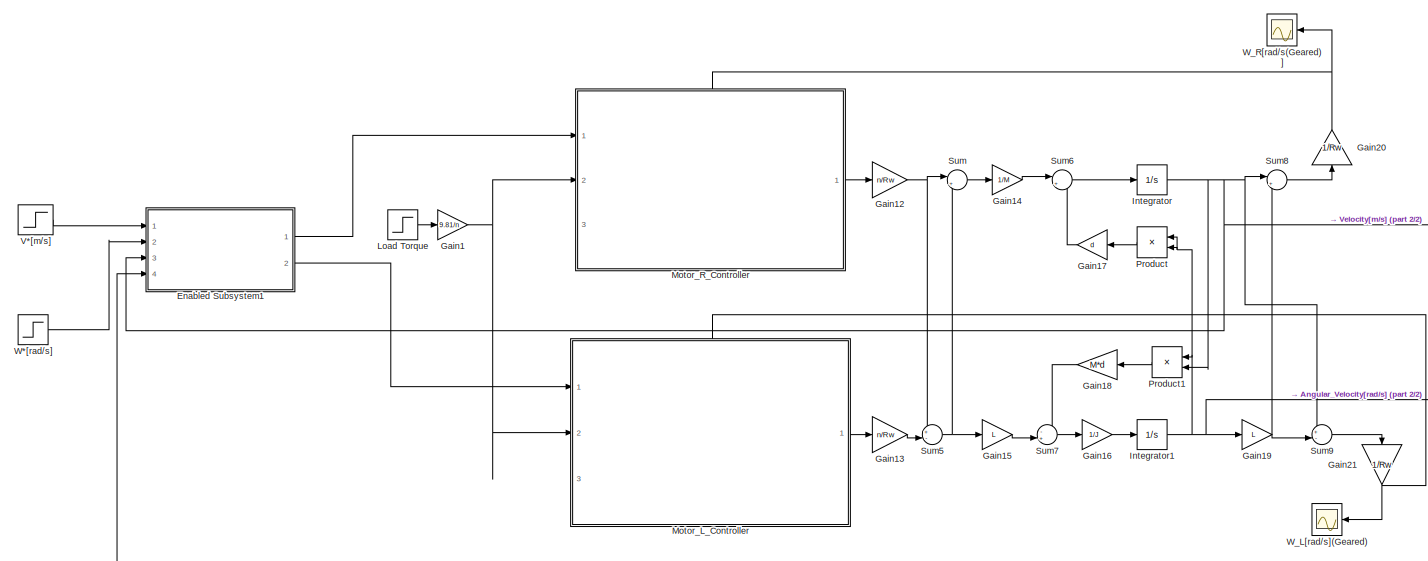
[diagram: root canvas - part 1/2, most of the canvas]
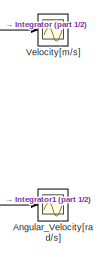
[diagram: root canvas - part 2/2, middle right region]
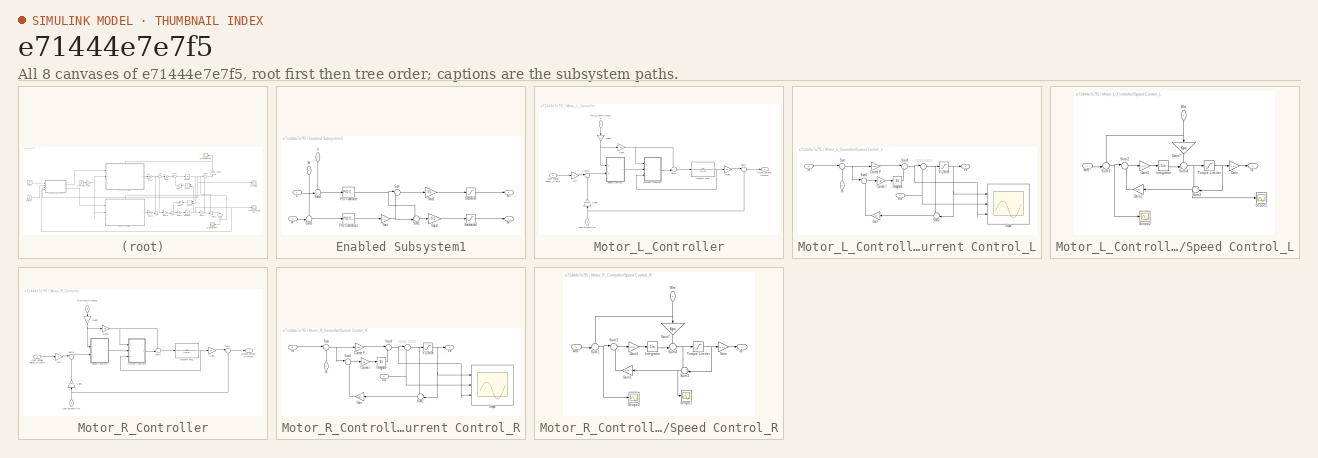
[diagram: thumbnail index - all 8 canvases of the model, root first then tree order]
MODEL slx_e71444e7e7f5
KIND model
CONFIG AbsTol = auto
CONFIG EnableMultiTasking = off
CONFIG FixedStep = auto
CONFIG MaxStep = auto
CONFIG MinStep = auto
CONFIG RelTol = 1e-3
CONFIG SampleTimeConstraint = Unconstrained
CONFIG Solver = VariableStepAuto
CONFIG SolverName = VariableStepAuto
CONFIG StartTime = 0.0
CONFIG StopTime = 2
BLOCK [Scope] Angular_Velocity[rad//s]
  Floating = off
  NumInputPorts = 1
  Ports = [1]
  ScopeSpecificationString = Simulink.scopes.TimeScopeBlockCfg('CurrentConfiguration', extmgr.ConfigurationSet(extmgr.Configuration('Core','General UI',true),extmgr.Configuration('Core','Source UI',true),extmgr.Configuration('Sources','WiredSimulink',true,'DataLoggingVariableName','ScopeData2'),extmgr.Configuration('Visuals','Time Domain',true,'SerializedDisplays',{struct('MinYLimReal','-0.01442','MaxYLimReal','0.01989','YLab...<+1471ch>
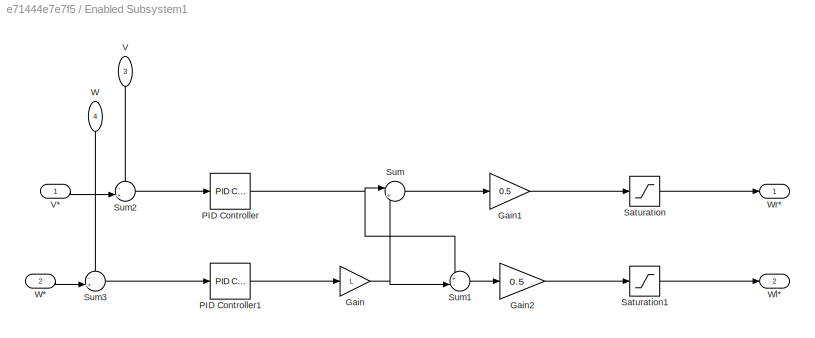
BLOCK [SubSystem] Enabled Subsystem1
  Ports = [4, 2]
  RequestExecContextInheritance = off
  TreatAsAtomicUnit = on
BLOCK [Gain] Enabled Subsystem1/Gain
  Gain = L
BLOCK [Gain] Enabled Subsystem1/Gain1
  Gain = 0.5
BLOCK [Gain] Enabled Subsystem1/Gain2
  Gain = 0.5
BLOCK [Reference] Enabled Subsystem1/PID Controller  REF=simulink/Continuous/PID Controller
  Ports = [1, 1]
  SourceBlock = simulink/Continuous/PID Controller
  SourceProductBaseCode = SL
  SourceType = PID 1dof
BLOCK [Reference] Enabled Subsystem1/PID Controller1  REF=simulink/Continuous/PID Controller
  Ports = [1, 1]
  SourceBlock = simulink/Continuous/PID Controller
  SourceProductBaseCode = SL
  SourceType = PID 1dof
BLOCK [Saturate] Enabled Subsystem1/Saturation
  LowerLimit = -1.6
  UpperLimit = 1.6
BLOCK [Saturate] Enabled Subsystem1/Saturation1
  LowerLimit = -1.6
  UpperLimit = 1.6
BLOCK [Sum] Enabled Subsystem1/Sum
  Inputs = |++
  Ports = [2, 1]
BLOCK [Sum] Enabled Subsystem1/Sum1
  Inputs = +-|
  Ports = [2, 1]
BLOCK [Sum] Enabled Subsystem1/Sum2
  Inputs = -+|
  Ports = [2, 1]
BLOCK [Sum] Enabled Subsystem1/Sum3
  Inputs = -+|
  Ports = [2, 1]
BLOCK [Inport] Enabled Subsystem1/V
  NameLocation = left
  Port = 3
BLOCK [Inport] Enabled Subsystem1/V*
BLOCK [Inport] Enabled Subsystem1/W
  NameLocation = left
  Port = 4
BLOCK [Inport] Enabled Subsystem1/W*
  Port = 2
BLOCK [Outport] Enabled Subsystem1/Wl*
  Port = 2
BLOCK [Outport] Enabled Subsystem1/Wr*
BLOCK [Gain] Gain1
  Gain = 9.81/n
BLOCK [Gain] Gain12
  Gain = n/Rw
BLOCK [Gain] Gain13
  Gain = n/Rw
BLOCK [Gain] Gain14
  Gain = 1/M
BLOCK [Gain] Gain15
  Gain = L
BLOCK [Gain] Gain16
  Gain = 1/J
BLOCK [Gain] Gain17
  Gain = d
  NameLocation = top
BLOCK [Gain] Gain18
  Gain = M*d
  NameLocation = top
BLOCK [Gain] Gain19
  Gain = L
BLOCK [Gain] Gain20
  Gain = 1/Rw
  NameLocation = right
BLOCK [Gain] Gain21
  Gain = 1/Rw
  NameLocation = left
BLOCK [Integrator] Integrator
  Ports = [1, 1]
BLOCK [Integrator] Integrator1
  Ports = [1, 1]
BLOCK [Step] Load Torque
  After = 0
  SampleTime = 0
  Time = 5
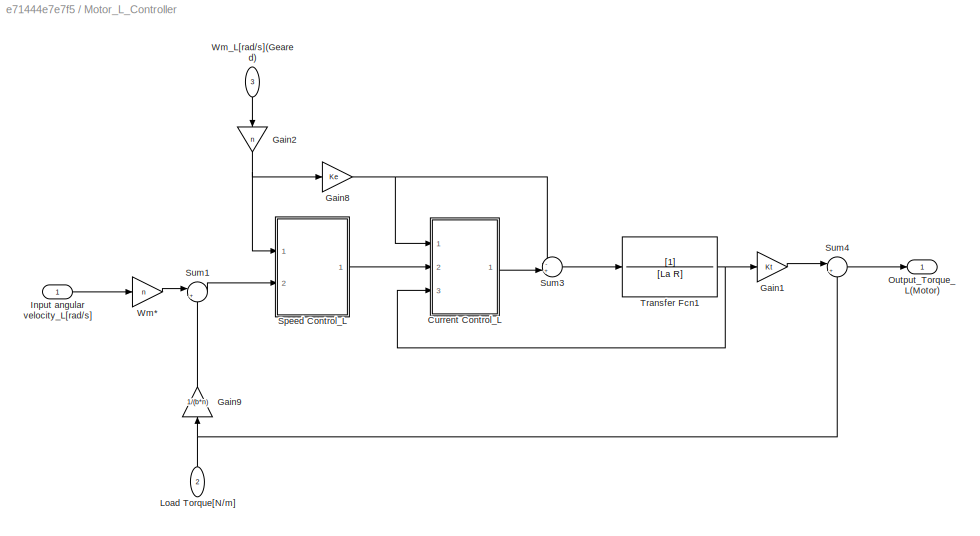
BLOCK [SubSystem] Motor_L_Controller
  PortSchema = {"entries":[{"content":{"sides":[{"content":{"connectorIds":["In1","In2"]},"type":"ConnectorPlacement.EquallySpacedRectSide","uuid":"38708cf0-fa5b-4525-8073-2ea034bbba89"},{"content":{"connectorIds":["Out1"],"side":"RIGHT"},"type":"ConnectorPlacement.EquallySpacedRectSide","uuid":"66c4a39b-21a9-4a0c-b844-f8b5c61f778e"},{"content":{"connectorIds":["In3"],"side":"TOP"},"type":"ConnectorPlacement.Equ...<+253ch>
  Ports = [3, 1]
  RequestExecContextInheritance = off
  TreatAsAtomicUnit = on
BLOCK [SubSystem] Motor_L_Controller/Current Control_L
  Ports = [3, 1]
  RequestExecContextInheritance = off
BLOCK [Gain] Motor_L_Controller/Current Control_L/Current I
  Gain = Kic
BLOCK [Gain] Motor_L_Controller/Current Control_L/Current P
  Gain = Kpc
BLOCK [Inport] Motor_L_Controller/Current Control_L/Ea
  NameLocation = left
BLOCK [Gain] Motor_L_Controller/Current Control_L/Gain
  Gain = Kac
  NameLocation = top
BLOCK [Inport] Motor_L_Controller/Current Control_L/Ia
  Port = 3
BLOCK [Inport] Motor_L_Controller/Current Control_L/Ia*
  Port = 2
BLOCK [Integrator] Motor_L_Controller/Current Control_L/Integrator
  Ports = [1, 1]
BLOCK [Scope] Motor_L_Controller/Current Control_L/Scope
  Floating = off
  NumInputPorts = 3
  Ports = [3]
  ScopeSpecificationString = Simulink.scopes.TimeScopeBlockCfg('CurrentConfiguration', extmgr.ConfigurationSet(extmgr.Configuration('Core','General UI',true),extmgr.Configuration('Core','Source UI',true),extmgr.Configuration('Sources','WiredSimulink',true,'DataLoggingVariableName','ScopeData1'),extmgr.Configuration('Visuals','Time Domain',true,'SerializedDisplays',{struct('MinYLimReal','-0.81447','MaxYLimReal','8.76833','YLab...<+1456ch>
BLOCK [Sum] Motor_L_Controller/Current Control_L/Sum
  Inputs = |+-
  Ports = [2, 1]
BLOCK [Sum] Motor_L_Controller/Current Control_L/Sum1
  Inputs = |+-
  Ports = [2, 1]
BLOCK [Sum] Motor_L_Controller/Current Control_L/Sum2
  Inputs = +-|
  NameLocation = top
  Ports = [2, 1]
BLOCK [Saturate] Motor_L_Controller/Current Control_L/V-Limiter
  LowerLimit = -12
  UpperLimit = 12
  ZeroCross = off
BLOCK [Outport] Motor_L_Controller/Current Control_L/Va
BLOCK [Sum] Motor_L_Controller/Current Control_L/Va_ref
  Inputs = |++
  NameLocation = top
  Ports = [2, 1]
BLOCK [Sum] Motor_L_Controller/Current Control_L/역기전력 전향보상
  Inputs = |++
  NameLocation = top
  Ports = [2, 1]
BLOCK [Gain] Motor_L_Controller/Gain1
  Gain = Kt
BLOCK [Gain] Motor_L_Controller/Gain2
  Gain = n
  NameLocation = left
BLOCK [Gain] Motor_L_Controller/Gain8
  Gain = Ke
BLOCK [Gain] Motor_L_Controller/Gain9
  Gain = 1/(b*n)
  NameLocation = right
BLOCK [Inport] Motor_L_Controller/Input angular velocity_L[rad//s]
BLOCK [Inport] Motor_L_Controller/Load Torque[N//m]
  NameLocation = right
  Port = 2
BLOCK [Outport] Motor_L_Controller/Output_Torque_L(Motor)
BLOCK [SubSystem] Motor_L_Controller/Speed Control_L
  Ports = [2, 1]
  RequestExecContextInheritance = off
BLOCK [Gain] Motor_L_Controller/Speed Control_L/Gain
  Gain = 1/Kt
BLOCK [Gain] Motor_L_Controller/Speed Control_L/Gain1
  Gain = Kas
  NameLocation = top
BLOCK [Gain] Motor_L_Controller/Speed Control_L/Gain5
  Gain = Kis
BLOCK [Gain] Motor_L_Controller/Speed Control_L/Gain7
  Gain = Kps
  NameLocation = right
BLOCK [Outport] Motor_L_Controller/Speed Control_L/Ia*
BLOCK [Integrator] Motor_L_Controller/Speed Control_L/Integrator
  Ports = [1, 1]
BLOCK [Scope] Motor_L_Controller/Speed Control_L/Scope1
  Floating = off
  NumInputPorts = 1
  Ports = [1]
  ScopeSpecificationString = Simulink.scopes.TimeScopeBlockCfg('CurrentConfiguration', extmgr.ConfigurationSet(extmgr.Configuration('Core','General UI',true),extmgr.Configuration('Core','Source UI',true),extmgr.Configuration('Sources','WiredSimulink',true,'DataLoggingVariableName','ScopeData3'),extmgr.Configuration('Visuals','Time Domain',true,'SerializedDisplays',{struct('MinYLimReal','-0.10753','MaxYLimReal','0.9678','YLabe...<+1413ch>
BLOCK [Scope] Motor_L_Controller/Speed Control_L/Scope2
  Floating = off
  NumInputPorts = 1
  Ports = [1]
  ScopeSpecificationString = Simulink.scopes.TimeScopeBlockCfg('CurrentConfiguration', extmgr.ConfigurationSet(extmgr.Configuration('Core','General UI',true),extmgr.Configuration('Core','Source UI',true),extmgr.Configuration('Sources','WiredSimulink',true,'DataLoggingVariableName','ScopeData5'),extmgr.Configuration('Visuals','Time Domain',true,'SerializedDisplays',{struct('MinYLimReal','-0.19775','MaxYLimReal','1.77489','YLab...<+1382ch>
BLOCK [Sum] Motor_L_Controller/Speed Control_L/Sum1
  Inputs = -+|
  Ports = [2, 1]
BLOCK [Sum] Motor_L_Controller/Speed Control_L/Sum2
  Inputs = |+-
  Ports = [2, 1]
BLOCK [Sum] Motor_L_Controller/Speed Control_L/Sum3
  Inputs = +-|
  NameLocation = top
  Ports = [2, 1]
BLOCK [Sum] Motor_L_Controller/Speed Control_L/Sum4
  Inputs = -+|
  Ports = [2, 1]
BLOCK [Saturate] Motor_L_Controller/Speed Control_L/Torque Limiter
  LowerLimit = -999999
  UpperLimit = 999999
  ZeroCross = off
BLOCK [Inport] Motor_L_Controller/Speed Control_L/Wm
  NameLocation = left
BLOCK [Inport] Motor_L_Controller/Speed Control_L/Wm*
  Port = 2
BLOCK [Sum] Motor_L_Controller/Sum1
  Inputs = |+-
  Ports = [2, 1]
BLOCK [Sum] Motor_L_Controller/Sum3
  Inputs = -+|
  Ports = [2, 1]
BLOCK [Sum] Motor_L_Controller/Sum4
  Inputs = |+-
  Ports = [2, 1]
BLOCK [TransferFcn] Motor_L_Controller/Transfer Fcn1
  Denominator = [La R]
BLOCK [Gain] Motor_L_Controller/Wm*
  Gain = n
BLOCK [Inport] Motor_L_Controller/Wm_L[rad//s](Geared)
  NameLocation = left
  Port = 3
BLOCK [SubSystem] Motor_R_Controller
  PortSchema = {"entries":[{"content":{"sides":[{"content":{"connectorIds":["In1","In2"]},"type":"ConnectorPlacement.EquallySpacedRectSide","uuid":"38708cf0-fa5b-4525-8073-2ea034bbba89"},{"content":{"connectorIds":["Out1"],"side":"RIGHT"},"type":"ConnectorPlacement.EquallySpacedRectSide","uuid":"66c4a39b-21a9-4a0c-b844-f8b5c61f778e"},{"content":{"connectorIds":["In3"],"side":"TOP"},"type":"ConnectorPlacement.Equ...<+253ch>
  Ports = [3, 1]
  RequestExecContextInheritance = off
  TreatAsAtomicUnit = on
BLOCK [SubSystem] Motor_R_Controller/Current Control_R
  Ports = [3, 1]
  RequestExecContextInheritance = off
BLOCK [Gain] Motor_R_Controller/Current Control_R/Current I
  Gain = Kic
BLOCK [Gain] Motor_R_Controller/Current Control_R/Current P
  Gain = Kpc
BLOCK [Inport] Motor_R_Controller/Current Control_R/Ea
  NameLocation = left
BLOCK [Gain] Motor_R_Controller/Current Control_R/Gain
  Gain = Kac
  NameLocation = top
BLOCK [Inport] Motor_R_Controller/Current Control_R/Ia
  Port = 3
BLOCK [Inport] Motor_R_Controller/Current Control_R/Ia*
  Port = 2
BLOCK [Integrator] Motor_R_Controller/Current Control_R/Integrator
  Ports = [1, 1]
BLOCK [Scope] Motor_R_Controller/Current Control_R/Scope
  Floating = off
  NumInputPorts = 3
  Ports = [3]
  ScopeSpecificationString = Simulink.scopes.TimeScopeBlockCfg('CurrentConfiguration', extmgr.ConfigurationSet(extmgr.Configuration('Core','General UI',true),extmgr.Configuration('Core','Source UI',true),extmgr.Configuration('Sources','WiredSimulink',true,'DataLoggingVariableName','ScopeData1'),extmgr.Configuration('Visuals','Time Domain',true,'SerializedDisplays',{struct('MinYLimReal','-0.81447','MaxYLimReal','8.76833','YLab...<+1456ch>
BLOCK [Sum] Motor_R_Controller/Current Control_R/Sum
  Inputs = |+-
  Ports = [2, 1]
BLOCK [Sum] Motor_R_Controller/Current Control_R/Sum1
  Inputs = |+-
  Ports = [2, 1]
BLOCK [Sum] Motor_R_Controller/Current Control_R/Sum2
  Inputs = +-|
  NameLocation = top
  Ports = [2, 1]
BLOCK [Saturate] Motor_R_Controller/Current Control_R/V-Limiter
  LowerLimit = -12
  UpperLimit = 12
  ZeroCross = off
BLOCK [Outport] Motor_R_Controller/Current Control_R/Va
BLOCK [Sum] Motor_R_Controller/Current Control_R/Va_ref
  Inputs = |++
  NameLocation = top
  Ports = [2, 1]
BLOCK [Sum] Motor_R_Controller/Current Control_R/역기전력 전향보상
  Inputs = |++
  NameLocation = top
  Ports = [2, 1]
BLOCK [Gain] Motor_R_Controller/Gain1
  Gain = Kt
BLOCK [Gain] Motor_R_Controller/Gain2
  Gain = n
  NameLocation = left
BLOCK [Gain] Motor_R_Controller/Gain8
  Gain = Ke
BLOCK [Gain] Motor_R_Controller/Gain9
  Gain = 1/(b*n)
  NameLocation = right
BLOCK [Inport] Motor_R_Controller/Input angular velocity_R[rad//s]
BLOCK [Inport] Motor_R_Controller/Load Torque[N//m]
  NameLocation = right
  Port = 2
BLOCK [Outport] Motor_R_Controller/Output_Torque_R(Motor)
BLOCK [SubSystem] Motor_R_Controller/Speed Control_R
  Ports = [2, 1]
  RequestExecContextInheritance = off
BLOCK [Gain] Motor_R_Controller/Speed Control_R/Gain
  Gain = 1/Kt
BLOCK [Gain] Motor_R_Controller/Speed Control_R/Gain1
  Gain = Kas
  NameLocation = top
BLOCK [Gain] Motor_R_Controller/Speed Control_R/Gain5
  Gain = Kis
BLOCK [Gain] Motor_R_Controller/Speed Control_R/Gain7
  Gain = Kps
  NameLocation = right
BLOCK [Outport] Motor_R_Controller/Speed Control_R/Ia*
BLOCK [Integrator] Motor_R_Controller/Speed Control_R/Integrator
  Ports = [1, 1]
BLOCK [Scope] Motor_R_Controller/Speed Control_R/Scope1
  Floating = off
  NumInputPorts = 1
  Ports = [1]
  ScopeSpecificationString = Simulink.scopes.TimeScopeBlockCfg('CurrentConfiguration', extmgr.ConfigurationSet(extmgr.Configuration('Core','General UI',true),extmgr.Configuration('Core','Source UI',true),extmgr.Configuration('Sources','WiredSimulink',true,'DataLoggingVariableName','ScopeData3'),extmgr.Configuration('Visuals','Time Domain',true,'SerializedDisplays',{struct('MinYLimReal','-0.10753','MaxYLimReal','0.9678','YLabe...<+1413ch>
BLOCK [Scope] Motor_R_Controller/Speed Control_R/Scope2
  Floating = off
  NumInputPorts = 1
  Ports = [1]
  ScopeSpecificationString = Simulink.scopes.TimeScopeBlockCfg('CurrentConfiguration', extmgr.ConfigurationSet(extmgr.Configuration('Core','General UI',true),extmgr.Configuration('Core','Source UI',true),extmgr.Configuration('Sources','WiredSimulink',true,'DataLoggingVariableName','ScopeData5'),extmgr.Configuration('Visuals','Time Domain',true,'SerializedDisplays',{struct('MinYLimReal','-1.6074','MaxYLimReal','0.30639','YLabe...<+1378ch>
BLOCK [Sum] Motor_R_Controller/Speed Control_R/Sum1
  Inputs = -+|
  Ports = [2, 1]
BLOCK [Sum] Motor_R_Controller/Speed Control_R/Sum2
  Inputs = |+-
  Ports = [2, 1]
BLOCK [Sum] Motor_R_Controller/Speed Control_R/Sum3
  Inputs = +-|
  NameLocation = top
  Ports = [2, 1]
BLOCK [Sum] Motor_R_Controller/Speed Control_R/Sum4
  Inputs = -+|
  Ports = [2, 1]
BLOCK [Saturate] Motor_R_Controller/Speed Control_R/Torque Limiter
  LowerLimit = -999999
  UpperLimit = 999999
  ZeroCross = off
BLOCK [Inport] Motor_R_Controller/Speed Control_R/Wm
  NameLocation = left
BLOCK [Inport] Motor_R_Controller/Speed Control_R/Wm*
  Port = 2
BLOCK [Sum] Motor_R_Controller/Sum1
  Inputs = |+-
  Ports = [2, 1]
BLOCK [Sum] Motor_R_Controller/Sum3
  Inputs = -+|
  Ports = [2, 1]
BLOCK [Sum] Motor_R_Controller/Sum4
  Inputs = |+-
  Ports = [2, 1]
BLOCK [TransferFcn] Motor_R_Controller/Transfer Fcn1
  Denominator = [La R]
BLOCK [Inport] Motor_R_Controller/W_R[rad//s](Geared)
  NameLocation = left
  Port = 3
BLOCK [Gain] Motor_R_Controller/Wm*
  Gain = n
BLOCK [Product] Product
  NameLocation = top
  Ports = [2, 1]
BLOCK [Product] Product1
  NameLocation = top
  Ports = [2, 1]
BLOCK [Sum] Sum
  Inputs = |++
  Ports = [2, 1]
BLOCK [Sum] Sum5
  Inputs = +-|
  Ports = [2, 1]
BLOCK [Sum] Sum6
  Inputs = |++
  Ports = [2, 1]
BLOCK [Sum] Sum7
  Inputs = -+|
  Ports = [2, 1]
BLOCK [Sum] Sum8
  Inputs = |++
  Ports = [2, 1]
BLOCK [Sum] Sum9
  Inputs = +-|
  Ports = [2, 1]
BLOCK [Step] V*[m//s]
  After = 0.20
  SampleTime = 0
  Time = 0
  ZeroCross = off
BLOCK [Scope] Velocity[m//s]
  Floating = off
  NumInputPorts = 1
  Ports = [1]
  ScopeSpecificationString = Simulink.scopes.TimeScopeBlockCfg('CurrentConfiguration', extmgr.ConfigurationSet(extmgr.Configuration('Core','General UI',true),extmgr.Configuration('Core','Source UI',true),extmgr.Configuration('Sources','WiredSimulink',true,'DataLoggingVariableName','ScopeData1'),extmgr.Configuration('Visuals','Time Domain',true,'SerializedDisplays',{struct('MinYLimReal','-0.02336','MaxYLimReal','0.07634','YLab...<+1467ch>
BLOCK [Step] W*[rad//s]
  After = 0.028
  SampleTime = 0
  Time = 0
  ZeroCross = off
BLOCK [Scope] W_L[rad//s](Geared)
  Floating = off
  NameLocation = top
  NumInputPorts = 1
  Ports = [1]
  ScopeSpecificationString = Simulink.scopes.TimeScopeBlockCfg('CurrentConfiguration', extmgr.ConfigurationSet(extmgr.Configuration('Core','General UI',true),extmgr.Configuration('Core','Source UI',true),extmgr.Configuration('Sources','WiredSimulink',true,'DataLoggingVariableName','ScopeData4'),extmgr.Configuration('Visuals','Time Domain',true,'SerializedDisplays',{struct('MinYLimReal','-0.03437','MaxYLimReal','0.30933','YLab...<+1436ch>
BLOCK [Scope] W_R[rad//s(Geared)]
  Floating = off
  NameLocation = top
  NumInputPorts = 1
  Ports = [1]
  ScopeSpecificationString = Simulink.scopes.TimeScopeBlockCfg('CurrentConfiguration', extmgr.ConfigurationSet(extmgr.Configuration('Core','General UI',true),extmgr.Configuration('Core','Source UI',true),extmgr.Configuration('Sources','WiredSimulink',true,'DataLoggingVariableName','ScopeData3'),extmgr.Configuration('Visuals','Time Domain',true,'SerializedDisplays',{struct('MinYLimReal','-0.0367','MaxYLimReal','0.33028','YLabe...<+1797ch>
LINE Enabled Subsystem1/Gain1:1 -> Enabled Subsystem1/Saturation:1
LINE Enabled Subsystem1/Gain2:1 -> Enabled Subsystem1/Saturation1:1
NET Enabled Subsystem1/Gain:1 -> Enabled Subsystem1/Sum1:2, Enabled Subsystem1/Sum:2
LINE Enabled Subsystem1/PID Controller1:1 -> Enabled Subsystem1/Gain:1
NET Enabled Subsystem1/PID Controller:1 -> Enabled Subsystem1/Sum1:1, Enabled Subsystem1/Sum:1
LINE Enabled Subsystem1/Saturation1:1 -> Enabled Subsystem1/Wl*:1
LINE Enabled Subsystem1/Saturation:1 -> Enabled Subsystem1/Wr*:1
LINE Enabled Subsystem1/Sum1:1 -> Enabled Subsystem1/Gain2:1
LINE Enabled Subsystem1/Sum2:1 -> Enabled Subsystem1/PID Controller:1
LINE Enabled Subsystem1/Sum3:1 -> Enabled Subsystem1/PID Controller1:1
LINE Enabled Subsystem1/Sum:1 -> Enabled Subsystem1/Gain1:1
LINE Enabled Subsystem1/V*:1 -> Enabled Subsystem1/Sum2:2
LINE Enabled Subsystem1/V:1 -> Enabled Subsystem1/Sum2:1
LINE Enabled Subsystem1/W*:1 -> Enabled Subsystem1/Sum3:2
LINE Enabled Subsystem1/W:1 -> Enabled Subsystem1/Sum3:1
LINE Enabled Subsystem1:1 -> Motor_R_Controller:1
LINE Enabled Subsystem1:2 -> Motor_L_Controller:1
NET Gain12:1 -> Sum5:1, Sum:1
LINE Gain13:1 -> Sum5:2
LINE Gain14:1 -> Sum6:1
LINE Gain15:1 -> Sum7:2
LINE Gain16:1 -> Integrator1:1
LINE Gain17:1 -> Sum6:2
LINE Gain18:1 -> Sum7:1
NET Gain19:1 -> Sum8:2, Sum9:2
NET Gain1:1 -> Motor_L_Controller:2, Motor_R_Controller:2
NET Gain20:1 -> Motor_R_Controller:3, W_R[rad//s(Geared)]:1
NET Gain21:1 -> Motor_L_Controller:3, W_L[rad//s](Geared):1
NET Integrator1:1 -> Angular_Velocity[rad//s]:1, Enabled Subsystem1:4, Gain19:1, Product1:1, Product:1, Product:2
NET Integrator:1 -> Enabled Subsystem1:3, Product1:2, Sum8:1, Sum9:1, Velocity[m//s]:1
LINE Load Torque:1 -> Gain1:1
LINE Motor_L_Controller/Current Control_L/Current I:1 -> Motor_L_Controller/Current Control_L/Integrator:1
LINE Motor_L_Controller/Current Control_L/Current P:1 -> Motor_L_Controller/Current Control_L/Va_ref:1
NET Motor_L_Controller/Current Control_L/Ea:1 -> Motor_L_Controller/Current Control_L/Scope:2, Motor_L_Controller/Current Control_L/역기전력 전향보상:2
LINE Motor_L_Controller/Current Control_L/Gain:1 -> Motor_L_Controller/Current Control_L/Sum1:2
LINE Motor_L_Controller/Current Control_L/Ia*:1 -> Motor_L_Controller/Current Control_L/Sum:1
LINE Motor_L_Controller/Current Control_L/Ia:1 -> Motor_L_Controller/Current Control_L/Sum:2
LINE Motor_L_Controller/Current Control_L/Integrator:1 -> Motor_L_Controller/Current Control_L/Va_ref:2
LINE Motor_L_Controller/Current Control_L/Sum1:1 -> Motor_L_Controller/Current Control_L/Current I:1
LINE Motor_L_Controller/Current Control_L/Sum2:1 -> Motor_L_Controller/Current Control_L/Gain:1
NET Motor_L_Controller/Current Control_L/Sum:1 -> Motor_L_Controller/Current Control_L/Current P:1, Motor_L_Controller/Current Control_L/Sum1:1
NET Motor_L_Controller/Current Control_L/V-Limiter:1 -> Motor_L_Controller/Current Control_L/Scope:1, Motor_L_Controller/Current Control_L/Sum2:2, Motor_L_Controller/Current Control_L/Va:1
NET Motor_L_Controller/Current Control_L/Va_ref:1 -> Motor_L_Controller/Current Control_L/Scope:3, Motor_L_Controller/Current Control_L/역기전력 전향보상:1
NET Motor_L_Controller/Current Control_L/역기전력 전향보상:1 -> Motor_L_Controller/Current Control_L/Sum2:1, Motor_L_Controller/Current Control_L/V-Limiter:1
LINE Motor_L_Controller/Current Control_L:1 -> Motor_L_Controller/Sum3:2
LINE Motor_L_Controller/Gain1:1 -> Motor_L_Controller/Sum4:1
NET Motor_L_Controller/Gain2:1 -> Motor_L_Controller/Gain8:1, Motor_L_Controller/Speed Control_L:1
NET Motor_L_Controller/Gain8:1 -> Motor_L_Controller/Current Control_L:1, Motor_L_Controller/Sum3:1
LINE Motor_L_Controller/Gain9:1 -> Motor_L_Controller/Sum1:2
LINE Motor_L_Controller/Input angular velocity_L[rad//s]:1 -> Motor_L_Controller/Wm*:1
NET Motor_L_Controller/Load Torque[N//m]:1 -> Motor_L_Controller/Gain9:1, Motor_L_Controller/Sum4:2
LINE Motor_L_Controller/Speed Control_L/Gain1:1 -> Motor_L_Controller/Speed Control_L/Sum2:2
LINE Motor_L_Controller/Speed Control_L/Gain5:1 -> Motor_L_Controller/Speed Control_L/Integrator:1
LINE Motor_L_Controller/Speed Control_L/Gain7:1 -> Motor_L_Controller/Speed Control_L/Sum4:1
LINE Motor_L_Controller/Speed Control_L/Gain:1 -> Motor_L_Controller/Speed Control_L/Ia*:1
LINE Motor_L_Controller/Speed Control_L/Integrator:1 -> Motor_L_Controller/Speed Control_L/Sum4:2
NET Motor_L_Controller/Speed Control_L/Sum1:1 -> Motor_L_Controller/Speed Control_L/Scope2:1, Motor_L_Controller/Speed Control_L/Sum2:1
LINE Motor_L_Controller/Speed Control_L/Sum2:1 -> Motor_L_Controller/Speed Control_L/Gain5:1
NET Motor_L_Controller/Speed Control_L/Sum3:1 -> Motor_L_Controller/Speed Control_L/Gain1:1, Motor_L_Controller/Speed Control_L/Scope1:1
NET Motor_L_Controller/Speed Control_L/Sum4:1 -> Motor_L_Controller/Speed Control_L/Sum3:1, Motor_L_Controller/Speed Control_L/Torque Limiter:1
NET Motor_L_Controller/Speed Control_L/Torque Limiter:1 -> Motor_L_Controller/Speed Control_L/Gain:1, Motor_L_Controller/Speed Control_L/Sum3:2
LINE Motor_L_Controller/Speed Control_L/Wm*:1 -> Motor_L_Controller/Speed Control_L/Sum1:2
NET Motor_L_Controller/Speed Control_L/Wm:1 -> Motor_L_Controller/Speed Control_L/Gain7:1, Motor_L_Controller/Speed Control_L/Sum1:1
LINE Motor_L_Controller/Speed Control_L:1 -> Motor_L_Controller/Current Control_L:2
LINE Motor_L_Controller/Sum1:1 -> Motor_L_Controller/Speed Control_L:2
LINE Motor_L_Controller/Sum3:1 -> Motor_L_Controller/Transfer Fcn1:1
LINE Motor_L_Controller/Sum4:1 -> Motor_L_Controller/Output_Torque_L(Motor):1
NET Motor_L_Controller/Transfer Fcn1:1 -> Motor_L_Controller/Current Control_L:3, Motor_L_Controller/Gain1:1
LINE Motor_L_Controller/Wm*:1 -> Motor_L_Controller/Sum1:1
LINE Motor_L_Controller/Wm_L[rad//s](Geared):1 -> Motor_L_Controller/Gain2:1
LINE Motor_L_Controller:1 -> Gain13:1
LINE Motor_R_Controller/Current Control_R/Current I:1 -> Motor_R_Controller/Current Control_R/Integrator:1
LINE Motor_R_Controller/Current Control_R/Current P:1 -> Motor_R_Controller/Current Control_R/Va_ref:1
NET Motor_R_Controller/Current Control_R/Ea:1 -> Motor_R_Controller/Current Control_R/Scope:2, Motor_R_Controller/Current Control_R/역기전력 전향보상:2
LINE Motor_R_Controller/Current Control_R/Gain:1 -> Motor_R_Controller/Current Control_R/Sum1:2
LINE Motor_R_Controller/Current Control_R/Ia*:1 -> Motor_R_Controller/Current Control_R/Sum:1
LINE Motor_R_Controller/Current Control_R/Ia:1 -> Motor_R_Controller/Current Control_R/Sum:2
LINE Motor_R_Controller/Current Control_R/Integrator:1 -> Motor_R_Controller/Current Control_R/Va_ref:2
LINE Motor_R_Controller/Current Control_R/Sum1:1 -> Motor_R_Controller/Current Control_R/Current I:1
LINE Motor_R_Controller/Current Control_R/Sum2:1 -> Motor_R_Controller/Current Control_R/Gain:1
NET Motor_R_Controller/Current Control_R/Sum:1 -> Motor_R_Controller/Current Control_R/Current P:1, Motor_R_Controller/Current Control_R/Sum1:1
NET Motor_R_Controller/Current Control_R/V-Limiter:1 -> Motor_R_Controller/Current Control_R/Scope:1, Motor_R_Controller/Current Control_R/Sum2:2, Motor_R_Controller/Current Control_R/Va:1
NET Motor_R_Controller/Current Control_R/Va_ref:1 -> Motor_R_Controller/Current Control_R/Scope:3, Motor_R_Controller/Current Control_R/역기전력 전향보상:1
NET Motor_R_Controller/Current Control_R/역기전력 전향보상:1 -> Motor_R_Controller/Current Control_R/Sum2:1, Motor_R_Controller/Current Control_R/V-Limiter:1
LINE Motor_R_Controller/Current Control_R:1 -> Motor_R_Controller/Sum3:2
LINE Motor_R_Controller/Gain1:1 -> Motor_R_Controller/Sum4:1
NET Motor_R_Controller/Gain2:1 -> Motor_R_Controller/Gain8:1, Motor_R_Controller/Speed Control_R:1
NET Motor_R_Controller/Gain8:1 -> Motor_R_Controller/Current Control_R:1, Motor_R_Controller/Sum3:1
LINE Motor_R_Controller/Gain9:1 -> Motor_R_Controller/Sum1:2
LINE Motor_R_Controller/Input angular velocity_R[rad//s]:1 -> Motor_R_Controller/Wm*:1
NET Motor_R_Controller/Load Torque[N//m]:1 -> Motor_R_Controller/Gain9:1, Motor_R_Controller/Sum4:2
LINE Motor_R_Controller/Speed Control_R/Gain1:1 -> Motor_R_Controller/Speed Control_R/Sum2:2
LINE Motor_R_Controller/Speed Control_R/Gain5:1 -> Motor_R_Controller/Speed Control_R/Integrator:1
LINE Motor_R_Controller/Speed Control_R/Gain7:1 -> Motor_R_Controller/Speed Control_R/Sum4:1
LINE Motor_R_Controller/Speed Control_R/Gain:1 -> Motor_R_Controller/Speed Control_R/Ia*:1
LINE Motor_R_Controller/Speed Control_R/Integrator:1 -> Motor_R_Controller/Speed Control_R/Sum4:2
NET Motor_R_Controller/Speed Control_R/Sum1:1 -> Motor_R_Controller/Speed Control_R/Scope2:1, Motor_R_Controller/Speed Control_R/Sum2:1
LINE Motor_R_Controller/Speed Control_R/Sum2:1 -> Motor_R_Controller/Speed Control_R/Gain5:1
NET Motor_R_Controller/Speed Control_R/Sum3:1 -> Motor_R_Controller/Speed Control_R/Gain1:1, Motor_R_Controller/Speed Control_R/Scope1:1
NET Motor_R_Controller/Speed Control_R/Sum4:1 -> Motor_R_Controller/Speed Control_R/Sum3:1, Motor_R_Controller/Speed Control_R/Torque Limiter:1
NET Motor_R_Controller/Speed Control_R/Torque Limiter:1 -> Motor_R_Controller/Speed Control_R/Gain:1, Motor_R_Controller/Speed Control_R/Sum3:2
LINE Motor_R_Controller/Speed Control_R/Wm*:1 -> Motor_R_Controller/Speed Control_R/Sum1:2
NET Motor_R_Controller/Speed Control_R/Wm:1 -> Motor_R_Controller/Speed Control_R/Gain7:1, Motor_R_Controller/Speed Control_R/Sum1:1
LINE Motor_R_Controller/Speed Control_R:1 -> Motor_R_Controller/Current Control_R:2
LINE Motor_R_Controller/Sum1:1 -> Motor_R_Controller/Speed Control_R:2
LINE Motor_R_Controller/Sum3:1 -> Motor_R_Controller/Transfer Fcn1:1
LINE Motor_R_Controller/Sum4:1 -> Motor_R_Controller/Output_Torque_R(Motor):1
NET Motor_R_Controller/Transfer Fcn1:1 -> Motor_R_Controller/Current Control_R:3, Motor_R_Controller/Gain1:1
LINE Motor_R_Controller/W_R[rad//s](Geared):1 -> Motor_R_Controller/Gain2:1
LINE Motor_R_Controller/Wm*:1 -> Motor_R_Controller/Sum1:1
LINE Motor_R_Controller:1 -> Gain12:1
LINE Product1:1 -> Gain18:1
LINE Product:1 -> Gain17:1
NET Sum5:1 -> Gain15:1, Sum:2
LINE Sum6:1 -> Integrator:1
LINE Sum7:1 -> Gain16:1
LINE Sum8:1 -> Gain20:1
LINE Sum9:1 -> Gain21:1
LINE Sum:1 -> Gain14:1
LINE V*[m//s]:1 -> Enabled Subsystem1:1
LINE W*[rad//s]:1 -> Enabled Subsystem1:2
note: NET lines group one-source signal fan-out (src -> all destinations, sorted); 1:1 wires keep LINE
